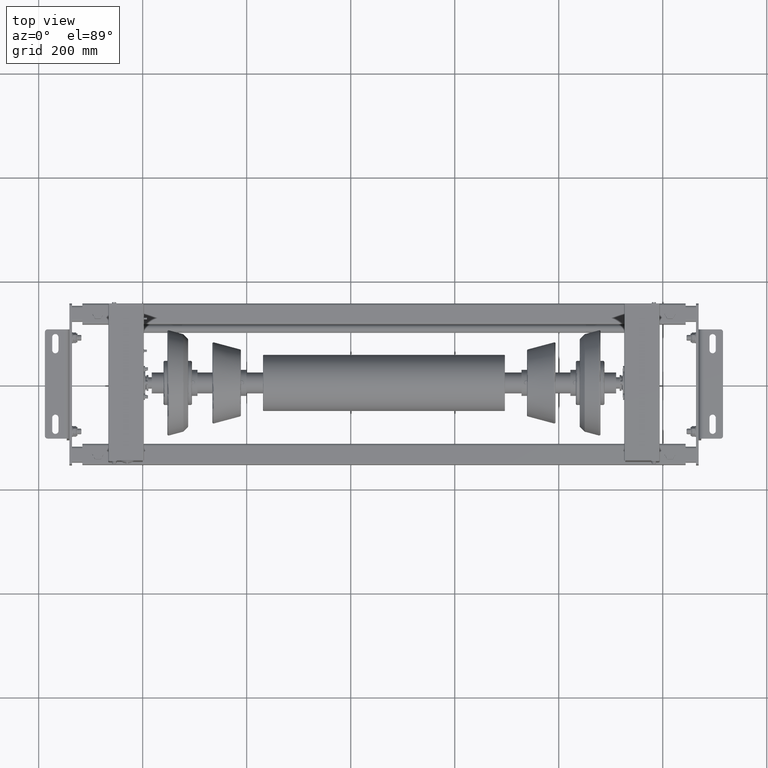
[diagram: clean part render]
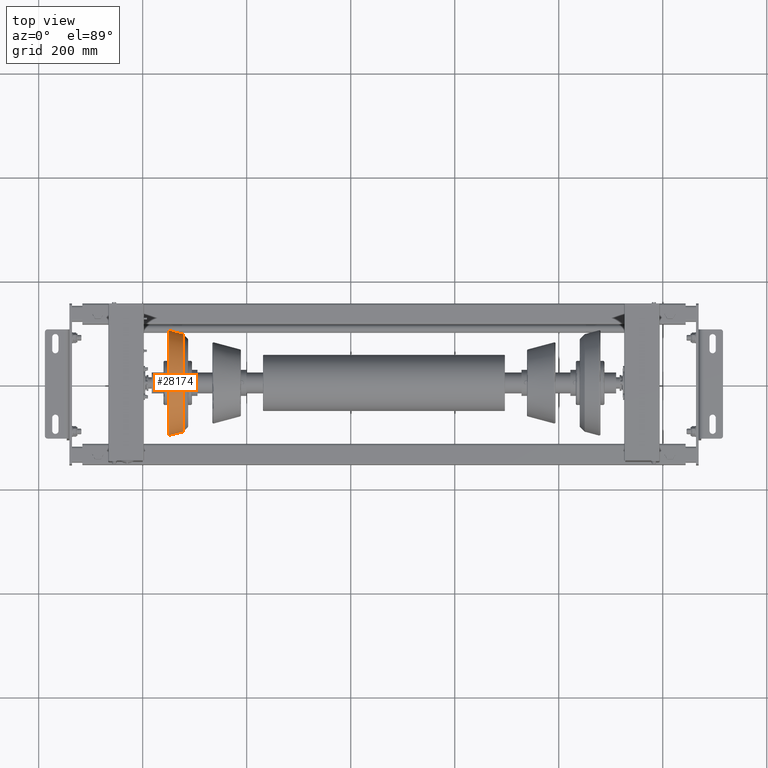
[diagram: same view with one face highlighted and labeled with its STEP entity id]
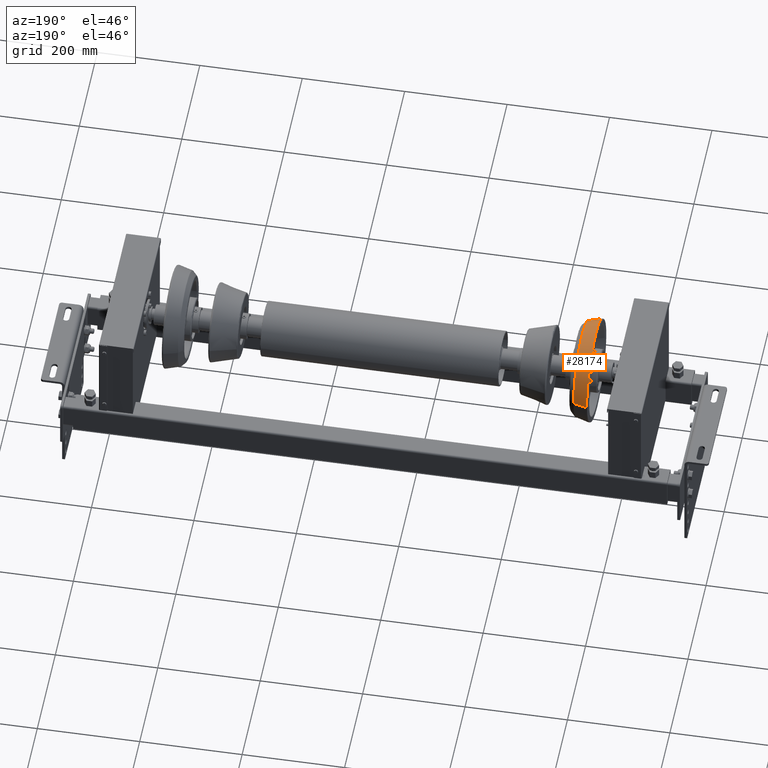
[diagram: same view with one face highlighted and labeled with its STEP entity id]
A machine part, top view. The second image highlights one B-rep face of the part: STEP entity #28174.
A second angle (auxiliary view) of the same face is appended — the face is thin or edge-on in the first view.
In plain terms, the highlighted conical surface has half-angle 15 deg.
Its self-contained STEP definition (entity closure, byte-faithful):
#27986=CARTESIAN_POINT('',(16.852952387243676,0.0,-101.056751133619660));
#27987=VERTEX_POINT('',#27986);
#28013=CARTESIAN_POINT('',(16.852952387243683,-101.056751133619660,-1.237588E-014));
#28014=VERTEX_POINT('',#28013);
#28022=CARTESIAN_POINT('',(16.852952387243679,0.0,0.0));
#28023=DIRECTION('',(1.0,0.0,0.0));
#28024=DIRECTION('',(0.0,-1.0,0.0));
#28025=AXIS2_PLACEMENT_3D('',#28022,#28023,#28024);
#28026=CIRCLE('',#28025,101.056751133619660);
#28027=EDGE_CURVE('',#28014,#27987,#28026,.T.);
#28125=CARTESIAN_POINT('',(4.734666112708879,0.0,0.0));
#28126=DIRECTION('',(1.0,0.0,0.0));
#28127=DIRECTION('',(0.0,1.0,0.0));
#28128=AXIS2_PLACEMENT_3D('',#28125,#28126,#28127);
#28129=CONICAL_SURFACE('',#28128,97.809666112708868,15.000000000000103);
#28130=CARTESIAN_POINT('',(16.852952387243679,101.056751133619660,0.0));
#28131=VERTEX_POINT('',#28130);
#28132=CARTESIAN_POINT('',(-9.883620161826016,93.892708110720250,0.0));
#28133=VERTEX_POINT('',#28132);
#28134=CARTESIAN_POINT('',(16.852952387243679,101.056751133619660,0.0));
#28135=DIRECTION('',(-0.965925826289068,-0.258819045102523,0.0));
#28136=VECTOR('',#28135,27.679736705857966);
#28137=LINE('',#28134,#28136);
#28138=EDGE_CURVE('',#28131,#28133,#28137,.T.);
#28139=ORIENTED_EDGE('',*,*,#28138,.F.);
#28140=CARTESIAN_POINT('',(16.852952387243679,0.0,0.0));
#28141=DIRECTION('',(1.0,0.0,0.0));
#28142=DIRECTION('',(0.0,-1.0,0.0));
#28143=AXIS2_PLACEMENT_3D('',#28140,#28141,#28142);
#28144=CIRCLE('',#28143,101.056751133619660);
#28145=EDGE_CURVE('',#27987,#28131,#28144,.T.);
#28146=ORIENTED_EDGE('',*,*,#28145,.F.);
#28147=ORIENTED_EDGE('',*,*,#28027,.F.);
#28148=CARTESIAN_POINT('',(-9.883620161826018,-93.892708110720250,-1.149854E-014));
#28149=VERTEX_POINT('',#28148);
#28150=CARTESIAN_POINT('',(16.852952387243683,-101.056751133619660,-1.237588E-014));
#28151=DIRECTION('',(-0.965925826289068,0.258819045102523,3.169619E-017));
#28152=VECTOR('',#28151,27.679736705857970);
#28153=LINE('',#28150,#28152);
#28154=EDGE_CURVE('',#28014,#28149,#28153,.T.);
#28155=ORIENTED_EDGE('',*,*,#28154,.T.);
#28156=CARTESIAN_POINT('',(-9.883620161826016,0.0,-93.892708110720250));
#28157=VERTEX_POINT('',#28156);
#28158=CARTESIAN_POINT('',(-9.883620161826016,0.0,0.0));
#28159=DIRECTION('',(-1.0,0.0,0.0));
#28160=DIRECTION('',(0.0,-1.0,0.0));
#28161=AXIS2_PLACEMENT_3D('',#28158,#28159,#28160);
#28162=CIRCLE('',#28161,93.892708110720250);
#28163=EDGE_CURVE('',#28157,#28149,#28162,.T.);
#28164=ORIENTED_EDGE('',*,*,#28163,.F.);
#28165=CARTESIAN_POINT('',(-9.883620161826016,0.0,0.0));
#28166=DIRECTION('',(-1.0,0.0,0.0));
#28167=DIRECTION('',(0.0,-1.0,0.0));
#28168=AXIS2_PLACEMENT_3D('',#28165,#28166,#28167);
#28169=CIRCLE('',#28168,93.892708110720250);
#28170=EDGE_CURVE('',#28133,#28157,#28169,.T.);
#28171=ORIENTED_EDGE('',*,*,#28170,.F.);
#28172=EDGE_LOOP('',(#28139,#28146,#28147,#28155,#28164,#28171));
#28173=FACE_OUTER_BOUND('',#28172,.T.);
#28174=ADVANCED_FACE('',(#28173),#28129,.T.);